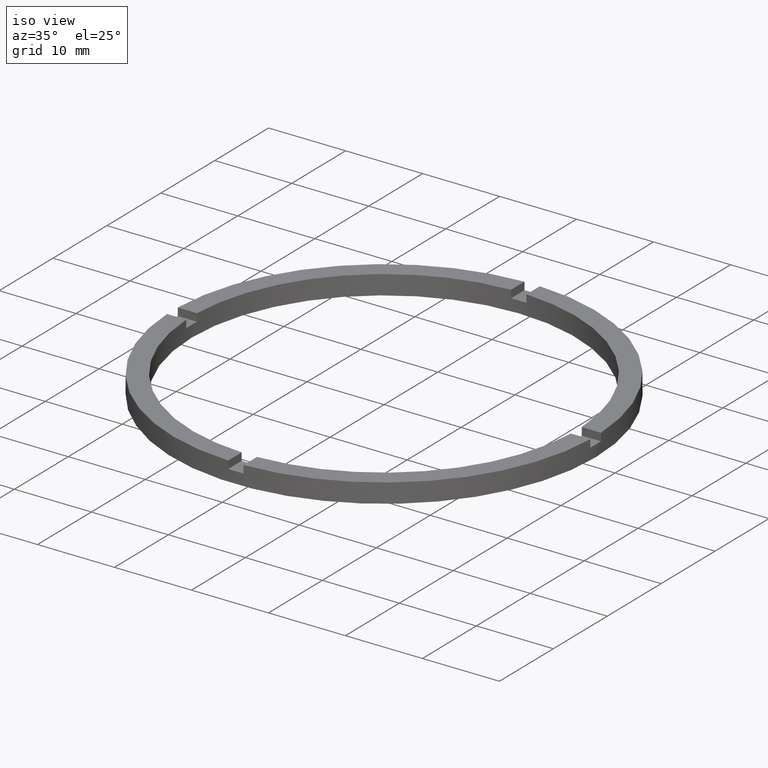
[diagram: clean part render]
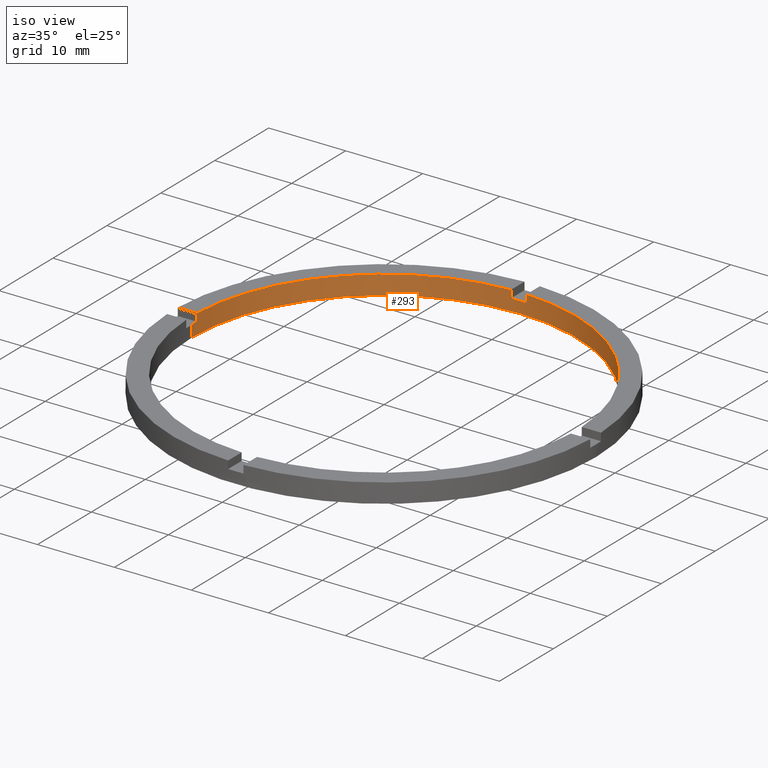
[diagram: same view with one face highlighted and labeled with its STEP entity id]
A machine part, iso view. The second image highlights one B-rep face of the part: STEP entity #293.
In plain terms, the highlighted cylindrical surface (partial cylindrical patch) has radius 25 mm, axis along (-0, -0, -1).
Its self-contained STEP definition (entity closure, byte-faithful):
#15 = LINE ( 'NONE', #671, #20 ) ;
#17 = EDGE_CURVE ( 'NONE', #655, #91, #530, .T. ) ;
#20 = VECTOR ( 'NONE', #718, 1000.000000000000000 ) ;
#26 = LINE ( 'NONE', #185, #553 ) ;
#28 = CIRCLE ( 'NONE', #460, 25.00000000000000000 ) ;
#38 = CARTESIAN_POINT ( 'NONE',  ( 0.000000000000000000, 0.000000000000000000, 2.500000000000000000 ) ) ;
#40 = EDGE_CURVE ( 'NONE', #783, #346, #15, .T. ) ;
#41 = CARTESIAN_POINT ( 'NONE',  ( 0.000000000000000000, 0.000000000000000000, 0.000000000000000000 ) ) ;
#50 = DIRECTION ( 'NONE',  ( 1.000000000000000000, 0.000000000000000000, 0.000000000000000000 ) ) ;
#67 = ORIENTED_EDGE ( 'NONE', *, *, #17, .F. ) ;
#73 = ORIENTED_EDGE ( 'NONE', *, *, #202, .T. ) ;
#74 = VERTEX_POINT ( 'NONE', #732 ) ;
#83 = DIRECTION ( 'NONE',  ( 0.000000000000000000, 0.000000000000000000, 1.000000000000000000 ) ) ;
#85 = ORIENTED_EDGE ( 'NONE', *, *, #40, .F. ) ;
#89 = ORIENTED_EDGE ( 'NONE', *, *, #388, .T. ) ;
#91 = VERTEX_POINT ( 'NONE', #432 ) ;
#93 = EDGE_LOOP ( 'NONE', ( #98, #386, #193, #337, #97, #637, #85, #356, #110, #89, #73, #67 ) ) ;
#96 = CARTESIAN_POINT ( 'NONE',  ( -25.00000000000000000, 0.000000000000000000, 1.500000000000000000 ) ) ;
#97 = ORIENTED_EDGE ( 'NONE', *, *, #462, .F. ) ;
#98 = ORIENTED_EDGE ( 'NONE', *, *, #410, .F. ) ;
#110 = ORIENTED_EDGE ( 'NONE', *, *, #324, .F. ) ;
#115 = CARTESIAN_POINT ( 'NONE',  ( 0.000000000000000000, 0.000000000000000000, 2.500000000000000000 ) ) ;
#143 = DIRECTION ( 'NONE',  ( 1.000000000000000000, 0.000000000000000000, 0.000000000000000000 ) ) ;
#153 = CARTESIAN_POINT ( 'NONE',  ( -24.97999199359359679, 0.9999999999999735767, 2.500000000000000000 ) ) ;
#160 = CARTESIAN_POINT ( 'NONE',  ( 25.00000000000000000, 3.061616997868383043E-15, 0.000000000000000000 ) ) ;
#167 = DIRECTION ( 'NONE',  ( 0.000000000000000000, 0.000000000000000000, 1.000000000000000000 ) ) ;
#185 = CARTESIAN_POINT ( 'NONE',  ( 25.00000000000000000, 3.061616997868383043E-15, 2.500000000000000000 ) ) ;
#188 = VERTEX_POINT ( 'NONE', #254 ) ;
#193 = ORIENTED_EDGE ( 'NONE', *, *, #764, .F. ) ;
#202 = EDGE_CURVE ( 'NONE', #653, #91, #505, .T. ) ;
#224 = DIRECTION ( 'NONE',  ( 0.000000000000000000, 0.000000000000000000, 1.000000000000000000 ) ) ;
#227 = EDGE_CURVE ( 'NONE', #601, #359, #523, .T. ) ;
#254 = CARTESIAN_POINT ( 'NONE',  ( 25.00000000000000000, 3.061616997868383043E-15, 1.500000000000000000 ) ) ;
#260 = VERTEX_POINT ( 'NONE', #555 ) ;
#266 = CARTESIAN_POINT ( 'NONE',  ( 0.000000000000000000, 0.000000000000000000, 2.500000000000000000 ) ) ;
#282 = CYLINDRICAL_SURFACE ( 'NONE', #772, 25.00000000000000000 ) ;
#293 = ADVANCED_FACE ( 'NONE', ( #534 ), #282, .F. ) ;
#298 = VECTOR ( 'NONE', #559, 1000.000000000000000 ) ;
#299 = LINE ( 'NONE', #311, #309 ) ;
#309 = VECTOR ( 'NONE', #167, 1000.000000000000000 ) ;
#311 = CARTESIAN_POINT ( 'NONE',  ( -24.97999199359359679, 0.9999999999999735767, 2.500000000000000000 ) ) ;
#315 = DIRECTION ( 'NONE',  ( -0.000000000000000000, -0.000000000000000000, -1.000000000000000000 ) ) ;
#316 = AXIS2_PLACEMENT_3D ( 'NONE', #435, #737, #317 ) ;
#317 = DIRECTION ( 'NONE',  ( 1.000000000000000000, 0.000000000000000000, 0.000000000000000000 ) ) ;
#322 = AXIS2_PLACEMENT_3D ( 'NONE', #115, #335, #50 ) ;
#324 = EDGE_CURVE ( 'NONE', #74, #449, #299, .T. ) ;
#330 = CARTESIAN_POINT ( 'NONE',  ( -1.000000000000026423, 24.97999199359359679, 2.500000000000000000 ) ) ;
#335 = DIRECTION ( 'NONE',  ( 0.000000000000000000, 0.000000000000000000, 1.000000000000000000 ) ) ;
#337 = ORIENTED_EDGE ( 'NONE', *, *, #227, .T. ) ;
#346 = VERTEX_POINT ( 'NONE', #521 ) ;
#356 = ORIENTED_EDGE ( 'NONE', *, *, #586, .T. ) ;
#359 = VERTEX_POINT ( 'NONE', #464 ) ;
#386 = ORIENTED_EDGE ( 'NONE', *, *, #582, .T. ) ;
#388 = EDGE_CURVE ( 'NONE', #74, #653, #28, .T. ) ;
#410 = EDGE_CURVE ( 'NONE', #188, #655, #26, .T. ) ;
#420 = CARTESIAN_POINT ( 'NONE',  ( -25.00000000000000000, 0.000000000000000000, 2.500000000000000000 ) ) ;
#432 = CARTESIAN_POINT ( 'NONE',  ( -25.00000000000000000, 0.000000000000000000, 0.000000000000000000 ) ) ;
#435 = CARTESIAN_POINT ( 'NONE',  ( 0.000000000000000000, 0.000000000000000000, 1.500000000000000000 ) ) ;
#449 = VERTEX_POINT ( 'NONE', #153 ) ;
#458 = CARTESIAN_POINT ( 'NONE',  ( 24.97999199359360034, 0.9999999999998430145, 1.500000000000000000 ) ) ;
#460 = AXIS2_PLACEMENT_3D ( 'NONE', #543, #598, #678 ) ;
#462 = EDGE_CURVE ( 'NONE', #260, #359, #550, .T. ) ;
#464 = CARTESIAN_POINT ( 'NONE',  ( 0.9999999999999735767, 24.97999199359359679, 2.500000000000000000 ) ) ;
#468 = DIRECTION ( 'NONE',  ( 1.000000000000000000, 0.000000000000000000, 0.000000000000000000 ) ) ;
#477 = AXIS2_PLACEMENT_3D ( 'NONE', #38, #83, #695 ) ;
#478 = LINE ( 'NONE', #720, #498 ) ;
#487 = CIRCLE ( 'NONE', #477, 25.00000000000000000 ) ;
#490 = DIRECTION ( 'NONE',  ( -0.000000000000000000, -0.000000000000000000, -1.000000000000000000 ) ) ;
#498 = VECTOR ( 'NONE', #767, 1000.000000000000000 ) ;
#505 = LINE ( 'NONE', #420, #769 ) ;
#511 = EDGE_CURVE ( 'NONE', #260, #346, #560, .T. ) ;
#521 = CARTESIAN_POINT ( 'NONE',  ( -1.000000000000026423, 24.97999199359359679, 1.500000000000000000 ) ) ;
#523 = CIRCLE ( 'NONE', #322, 25.00000000000000000 ) ;
#530 = CIRCLE ( 'NONE', #742, 25.00000000000000000 ) ;
#534 = FACE_OUTER_BOUND ( 'NONE', #93, .T. ) ;
#543 = CARTESIAN_POINT ( 'NONE',  ( 0.000000000000000000, 0.000000000000000000, 1.500000000000000000 ) ) ;
#550 = LINE ( 'NONE', #685, #298 ) ;
#553 = VECTOR ( 'NONE', #315, 1000.000000000000000 ) ;
#555 = CARTESIAN_POINT ( 'NONE',  ( 0.9999999999999735767, 24.97999199359359679, 1.500000000000000000 ) ) ;
#559 = DIRECTION ( 'NONE',  ( 0.000000000000000000, 0.000000000000000000, 1.000000000000000000 ) ) ;
#560 = CIRCLE ( 'NONE', #595, 25.00000000000000000 ) ;
#575 = CARTESIAN_POINT ( 'NONE',  ( 24.97999199359360034, 0.9999999999998430145, 2.500000000000000000 ) ) ;
#582 = EDGE_CURVE ( 'NONE', #188, #629, #744, .T. ) ;
#586 = EDGE_CURVE ( 'NONE', #783, #449, #487, .T. ) ;
#595 = AXIS2_PLACEMENT_3D ( 'NONE', #634, #688, #143 ) ;
#598 = DIRECTION ( 'NONE',  ( 0.000000000000000000, 0.000000000000000000, 1.000000000000000000 ) ) ;
#601 = VERTEX_POINT ( 'NONE', #575 ) ;
#629 = VERTEX_POINT ( 'NONE', #458 ) ;
#634 = CARTESIAN_POINT ( 'NONE',  ( 0.000000000000000000, 0.000000000000000000, 1.500000000000000000 ) ) ;
#637 = ORIENTED_EDGE ( 'NONE', *, *, #511, .T. ) ;
#653 = VERTEX_POINT ( 'NONE', #96 ) ;
#655 = VERTEX_POINT ( 'NONE', #160 ) ;
#671 = CARTESIAN_POINT ( 'NONE',  ( -1.000000000000026423, 24.97999199359359679, 2.500000000000000000 ) ) ;
#678 = DIRECTION ( 'NONE',  ( 1.000000000000000000, 0.000000000000000000, 0.000000000000000000 ) ) ;
#685 = CARTESIAN_POINT ( 'NONE',  ( 0.9999999999999735767, 24.97999199359359679, 2.500000000000000000 ) ) ;
#688 = DIRECTION ( 'NONE',  ( 0.000000000000000000, -0.000000000000000000, 1.000000000000000000 ) ) ;
#691 = DIRECTION ( 'NONE',  ( -1.000000000000000000, 0.000000000000000000, 0.000000000000000000 ) ) ;
#695 = DIRECTION ( 'NONE',  ( 1.000000000000000000, 0.000000000000000000, 0.000000000000000000 ) ) ;
#717 = DIRECTION ( 'NONE',  ( -0.000000000000000000, -0.000000000000000000, -1.000000000000000000 ) ) ;
#718 = DIRECTION ( 'NONE',  ( -0.000000000000000000, -0.000000000000000000, -1.000000000000000000 ) ) ;
#720 = CARTESIAN_POINT ( 'NONE',  ( 24.97999199359360034, 0.9999999999998430145, 2.500000000000000000 ) ) ;
#732 = CARTESIAN_POINT ( 'NONE',  ( -24.97999199359359679, 0.9999999999999735767, 1.500000000000000000 ) ) ;
#737 = DIRECTION ( 'NONE',  ( 0.000000000000000000, 0.000000000000000000, 1.000000000000000000 ) ) ;
#742 = AXIS2_PLACEMENT_3D ( 'NONE', #41, #224, #468 ) ;
#744 = CIRCLE ( 'NONE', #316, 25.00000000000000000 ) ;
#764 = EDGE_CURVE ( 'NONE', #601, #629, #478, .T. ) ;
#767 = DIRECTION ( 'NONE',  ( -0.000000000000000000, -0.000000000000000000, -1.000000000000000000 ) ) ;
#769 = VECTOR ( 'NONE', #717, 1000.000000000000000 ) ;
#772 = AXIS2_PLACEMENT_3D ( 'NONE', #266, #490, #691 ) ;
#783 = VERTEX_POINT ( 'NONE', #330 ) ;